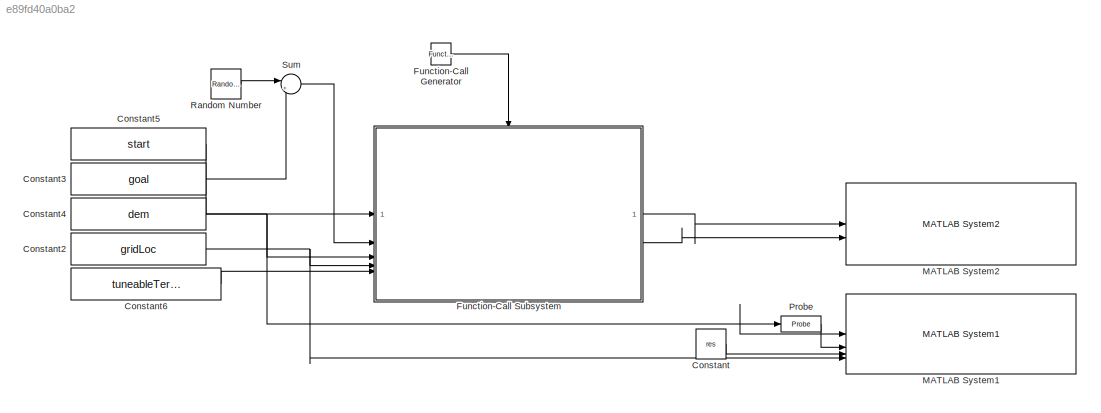
MODEL slx_e89fd40a0ba2
KIND model
CONFIG AbsTol = auto
CONFIG EnableMultiTasking = off
CONFIG FixedStep = auto
CONFIG InitFcn = globalPlanSetup
CONFIG MaxStep = auto
CONFIG MinStep = auto
CONFIG RelTol = 1e-3
CONFIG SampleTimeConstraint = Unconstrained
CONFIG SolverName = VariableStepAuto
CONFIG StartTime = 0.0
CONFIG StopTime = 10.0
BLOCK [Constant] Constant
  Value = res
BLOCK [Constant] Constant2
  Value = gridLoc
BLOCK [Constant] Constant3
  Value = goal
BLOCK [Constant] Constant4
  Value = dem
BLOCK [Constant] Constant5
  Value = start
BLOCK [Constant] Constant6
  OutDataTypeStr = Bus: fsp_tunable_bus
  Value = tuneableTerrainAwareParams
BLOCK [Reference] Function-Call Generator  REF=simulink/Ports &
Subsystems/Function-Call
Generator
  SourceBlock = simulink/Ports &\nSubsystems/Function-Call\nGenerator
  SourceType = Function-Call Generator
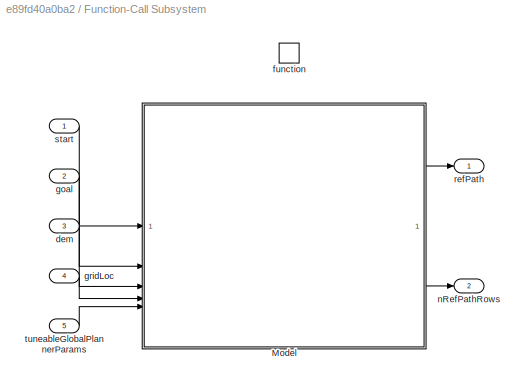
BLOCK [SubSystem] Function-Call Subsystem
  TreatAsAtomicUnit = on
BLOCK [ModelReference] Function-Call Subsystem/Model
  ModelNameDialog = planGlobalPath.slx
  ModelReferenceVersion = 2.0
BLOCK [Inport] Function-Call Subsystem/dem
  Port = 3
BLOCK [TriggerPort] Function-Call Subsystem/function
  StatesWhenEnabling = held
  TriggerType = function-call
  VariantControl = (inherit)
BLOCK [Inport] Function-Call Subsystem/goal
  Port = 2
BLOCK [Inport] Function-Call Subsystem/gridLoc
  Port = 4
BLOCK [Outport] Function-Call Subsystem/nRefPathRows
  Port = 2
BLOCK [Outport] Function-Call Subsystem/refPath
BLOCK [Inport] Function-Call Subsystem/start
BLOCK [Inport] Function-Call Subsystem/tuneableGlobalPlannerParams
  OutDataTypeStr = Bus: fsp_tunable_bus
  Port = 5
BLOCK [Reference] MATLAB System1  REF=roshelperlib/MATLAB System1  (lib defined in slx_3328ea0e13a5)
  SourceBlock = roshelperlib/MATLAB System1
  SourceType = exampleHelperMapVisualizerSys
BLOCK [Reference] MATLAB System2  REF=roshelperlib/MATLAB System2  (lib defined in slx_3328ea0e13a5)
  SourceBlock = roshelperlib/MATLAB System2
  SourceType = exampleHelperPathVisualizerSys
BLOCK [Probe] Probe
  ProbeComplexSignal = off
  ProbeSampleTime = off
  ProbeSignalDimensions = on
  ProbeWidth = off
BLOCK [RandomNumber] Random Number
  Mean = [0 0 0]
  SampleTime = 0.1
  Variance = 10
BLOCK [Sum] Sum
  Inputs = |++
NET Constant2:1 -> Function-Call Subsystem:4, MATLAB System1:4
LINE Constant3:1 -> Sum:2
NET Constant4:1 -> Function-Call Subsystem:3, MATLAB System1:1, Probe:1
LINE Constant5:1 -> Function-Call Subsystem:1
LINE Constant6:1 -> Function-Call Subsystem:5
LINE Constant:1 -> MATLAB System1:3
LINE Function-Call Generator:1 -> Function-Call Subsystem:trigger
LINE Function-Call Subsystem/Model:1 -> Function-Call Subsystem/refPath:1
LINE Function-Call Subsystem/Model:2 -> Function-Call Subsystem/nRefPathRows:1
LINE Function-Call Subsystem/dem:1 -> Function-Call Subsystem/Model:3
LINE Function-Call Subsystem/goal:1 -> Function-Call Subsystem/Model:2
LINE Function-Call Subsystem/gridLoc:1 -> Function-Call Subsystem/Model:4
LINE Function-Call Subsystem/start:1 -> Function-Call Subsystem/Model:1
LINE Function-Call Subsystem/tuneableGlobalPlannerParams:1 -> Function-Call Subsystem/Model:5
LINE Function-Call Subsystem:1 -> MATLAB System2:1
LINE Function-Call Subsystem:2 -> MATLAB System2:2
LINE Probe:1 -> MATLAB System1:2
LINE Random Number:1 -> Sum:1
LINE Sum:1 -> Function-Call Subsystem:2
note: NET lines group one-source signal fan-out (src -> all destinations, sorted); 1:1 wires keep LINE
